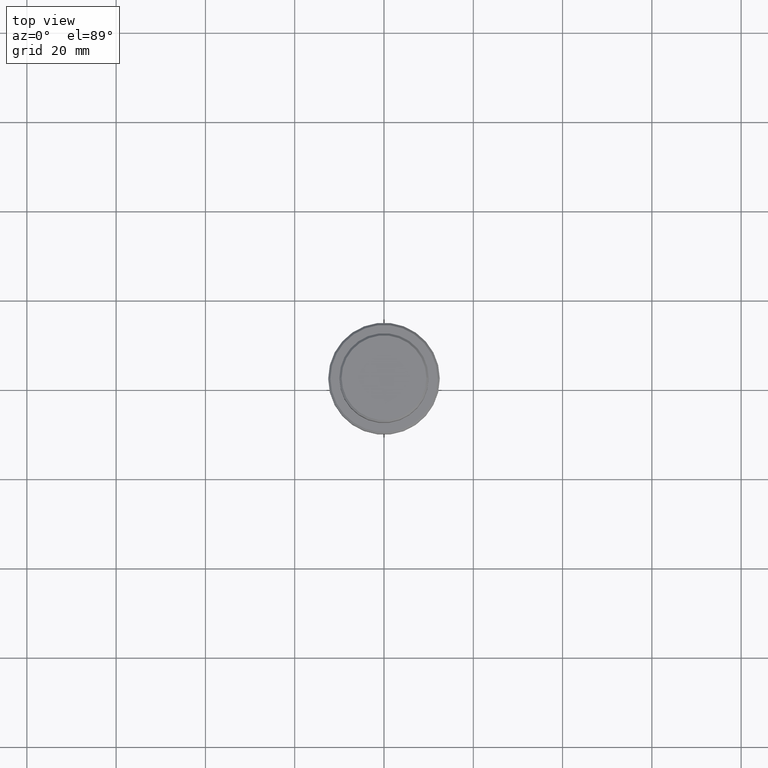
[diagram: clean part render]
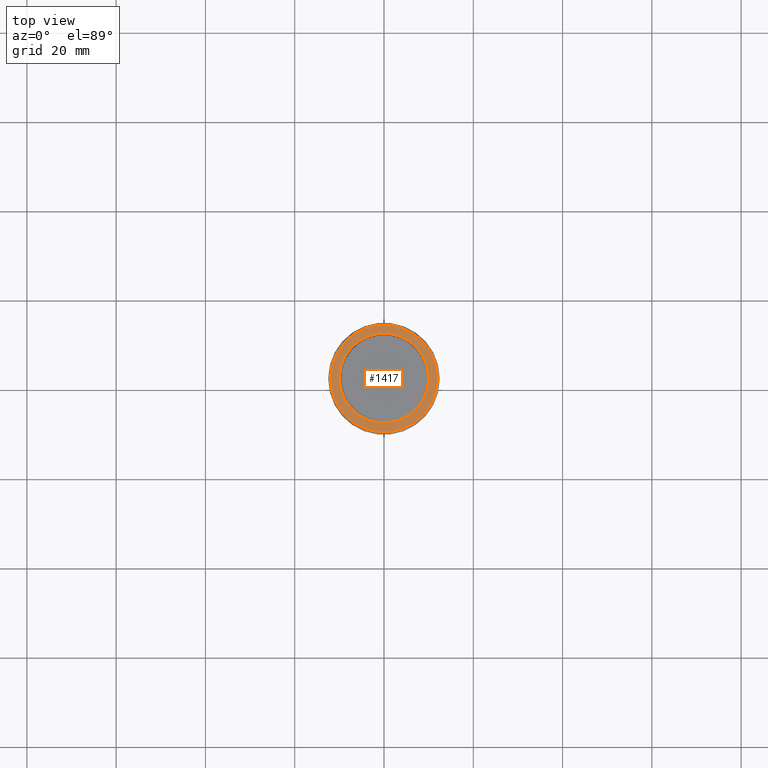
[diagram: same view with one face highlighted and labeled with its STEP entity id]
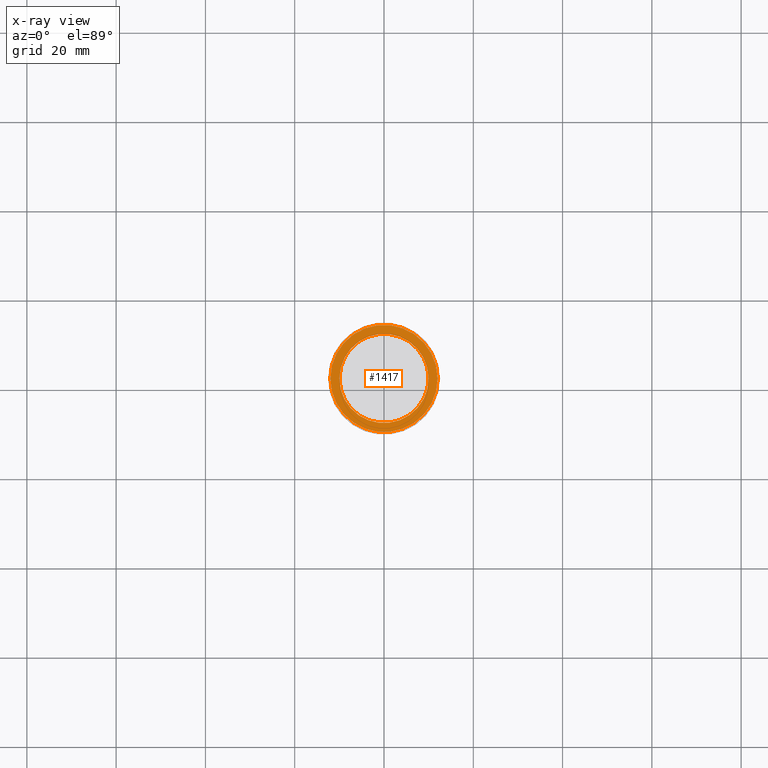
[diagram: x-ray of the same camera — body ghosted, the highlighted face saturated]
A machine part, top view. The second image highlights one B-rep face of the part: STEP entity #1417.
The next image is the same camera in x-ray: the body ghosted, the highlighted face saturated — about 0% of this face is hidden behind the body in this view.
In plain terms, the highlighted planar face has unit normal (0, -0, 1).
Its self-contained STEP definition (entity closure, byte-faithful):
#34 = CARTESIAN_POINT ( 'NONE',  ( 0.000000000000000000, 0.000000000000000000, -9.000000000000001776 ) ) ;
#46 = DIRECTION ( 'NONE',  ( -0.000000000000000000, -0.000000000000000000, 1.000000000000000000 ) ) ;
#47 = PLANE ( 'NONE',  #861 ) ;
#51 = DIRECTION ( 'NONE',  ( 0.000000000000000000, -0.000000000000000000, 1.000000000000000000 ) ) ;
#86 = VERTEX_POINT ( 'NONE', #911 ) ;
#95 = CARTESIAN_POINT ( 'NONE',  ( 9.999999999999994671, 0.000000000000000000, -9.000000000000001776 ) ) ;
#140 = CARTESIAN_POINT ( 'NONE',  ( -9.999999999999994671, 1.224646799147352665E-15, -9.000000000000001776 ) ) ;
#175 = ORIENTED_EDGE ( 'NONE', *, *, #1008, .T. ) ;
#194 = DIRECTION ( 'NONE',  ( 1.000000000000000000, 0.000000000000000000, 0.000000000000000000 ) ) ;
#235 = CIRCLE ( 'NONE', #1289, 9.999999999999994671 ) ;
#243 = CARTESIAN_POINT ( 'NONE',  ( -12.00000000000002487, 0.000000000000000000, -9.000000000000001776 ) ) ;
#247 = EDGE_LOOP ( 'NONE', ( #674, #714 ) ) ;
#410 = AXIS2_PLACEMENT_3D ( 'NONE', #34, #461, #483 ) ;
#461 = DIRECTION ( 'NONE',  ( 0.000000000000000000, 0.000000000000000000, -1.000000000000000000 ) ) ;
#483 = DIRECTION ( 'NONE',  ( 1.000000000000000000, 0.000000000000000000, 0.000000000000000000 ) ) ;
#496 = VERTEX_POINT ( 'NONE', #95 ) ;
#499 = DIRECTION ( 'NONE',  ( 1.000000000000000000, 0.000000000000000000, 0.000000000000000000 ) ) ;
#674 = ORIENTED_EDGE ( 'NONE', *, *, #924, .T. ) ;
#690 = FACE_BOUND ( 'NONE', #247, .T. ) ;
#692 = DIRECTION ( 'NONE',  ( 1.000000000000000000, 0.000000000000000000, 0.000000000000000000 ) ) ;
#693 = EDGE_CURVE ( 'NONE', #1158, #86, #1338, .T. ) ;
#714 = ORIENTED_EDGE ( 'NONE', *, *, #898, .T. ) ;
#861 = AXIS2_PLACEMENT_3D ( 'NONE', #1123, #51, #499 ) ;
#898 = EDGE_CURVE ( 'NONE', #914, #496, #1246, .T. ) ;
#901 = DIRECTION ( 'NONE',  ( -0.000000000000000000, -0.000000000000000000, 1.000000000000000000 ) ) ;
#911 = CARTESIAN_POINT ( 'NONE',  ( 12.00000000000002487, 1.500192328955509115E-15, -9.000000000000001776 ) ) ;
#914 = VERTEX_POINT ( 'NONE', #140 ) ;
#924 = EDGE_CURVE ( 'NONE', #496, #914, #235, .T. ) ;
#932 = AXIS2_PLACEMENT_3D ( 'NONE', #1121, #901, #194 ) ;
#1007 = DIRECTION ( 'NONE',  ( 0.000000000000000000, 0.000000000000000000, -1.000000000000000000 ) ) ;
#1008 = EDGE_CURVE ( 'NONE', #86, #1158, #1379, .T. ) ;
#1017 = AXIS2_PLACEMENT_3D ( 'NONE', #1124, #46, #1053 ) ;
#1021 = CARTESIAN_POINT ( 'NONE',  ( 0.000000000000000000, 0.000000000000000000, -9.000000000000001776 ) ) ;
#1053 = DIRECTION ( 'NONE',  ( 1.000000000000000000, 0.000000000000000000, 0.000000000000000000 ) ) ;
#1121 = CARTESIAN_POINT ( 'NONE',  ( 0.000000000000000000, 0.000000000000000000, -9.000000000000001776 ) ) ;
#1123 = CARTESIAN_POINT ( 'NONE',  ( 0.000000000000000000, 9.499999999999994671, -9.000000000000001776 ) ) ;
#1124 = CARTESIAN_POINT ( 'NONE',  ( 0.000000000000000000, 0.000000000000000000, -9.000000000000001776 ) ) ;
#1158 = VERTEX_POINT ( 'NONE', #243 ) ;
#1183 = EDGE_LOOP ( 'NONE', ( #1306, #175 ) ) ;
#1229 = FACE_OUTER_BOUND ( 'NONE', #1183, .T. ) ;
#1246 = CIRCLE ( 'NONE', #410, 9.999999999999994671 ) ;
#1289 = AXIS2_PLACEMENT_3D ( 'NONE', #1021, #1007, #692 ) ;
#1306 = ORIENTED_EDGE ( 'NONE', *, *, #693, .T. ) ;
#1338 = CIRCLE ( 'NONE', #1017, 12.00000000000002487 ) ;
#1379 = CIRCLE ( 'NONE', #932, 12.00000000000002487 ) ;
#1417 = ADVANCED_FACE ( 'NONE', ( #1229, #690 ), #47, .T. ) ;